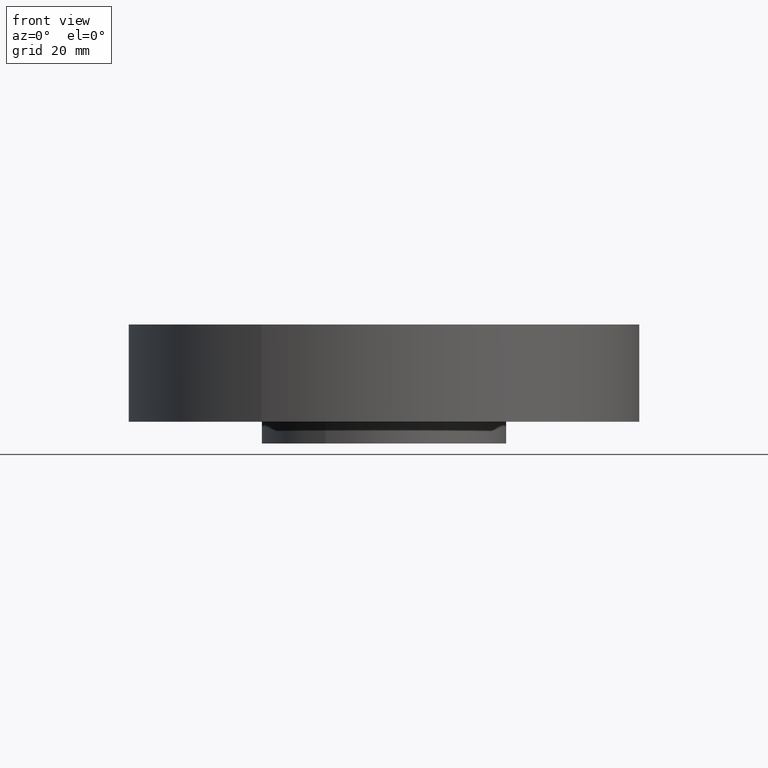
[diagram: clean part render]
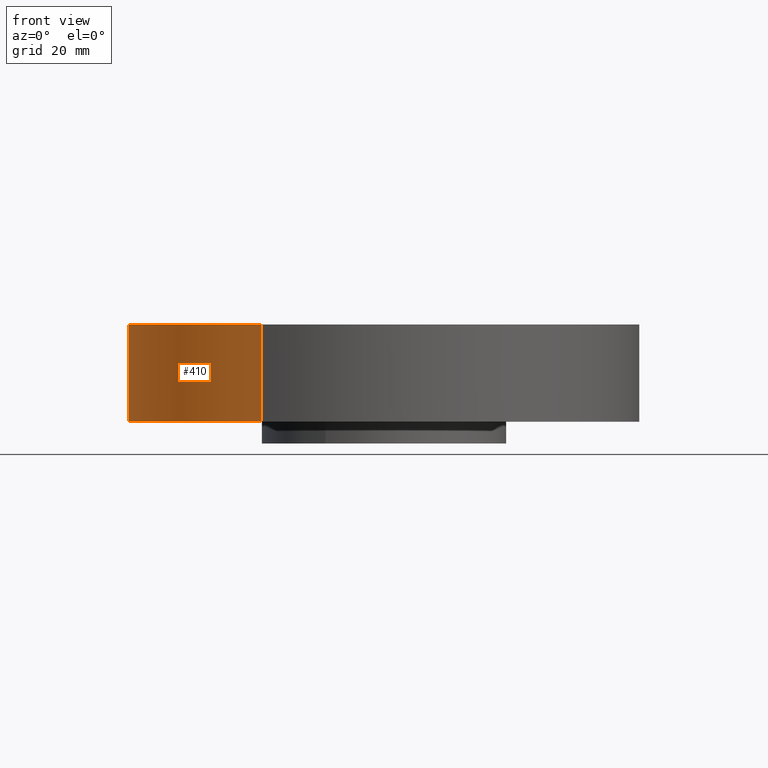
[diagram: same view with one face highlighted and labeled with its STEP entity id]
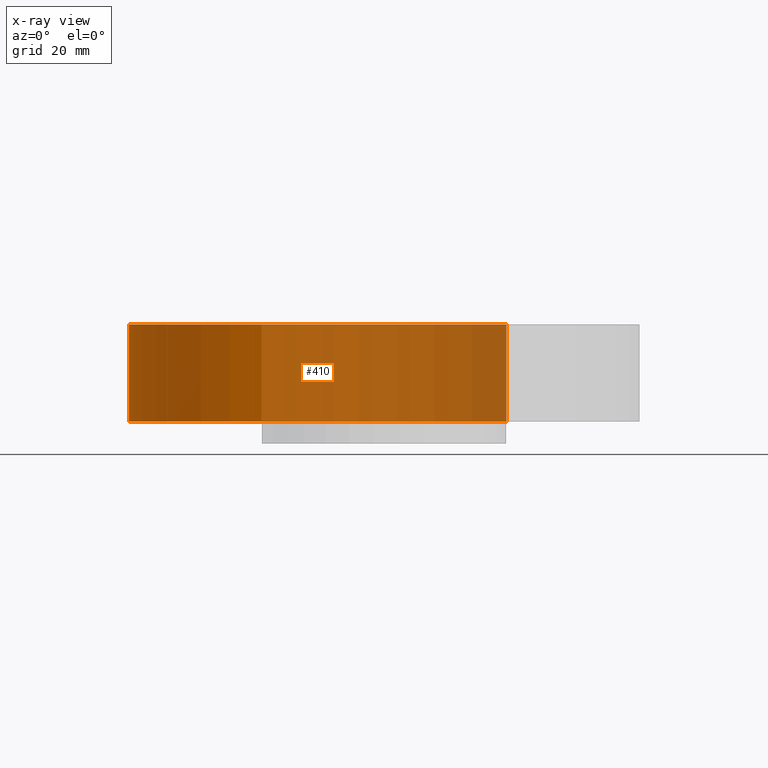
[diagram: x-ray of the same camera — body ghosted, the highlighted face saturated]
A machine part, front view. The second image highlights one B-rep face of the part: STEP entity #410.
The next image is the same camera in x-ray: the body ghosted, the highlighted face saturated — about 65% of this face is hidden behind the body in this view.
In plain terms, the highlighted cylindrical surface (partial cylindrical patch) has radius 74.676 mm, axis along (0, 0, -1).
Its self-contained STEP definition (entity closure, byte-faithful):
#274=AXIS2_PLACEMENT_3D('Circle Axis2P3D',#272,#273,$) ;
#371=AXIS2_PLACEMENT_3D('Cylinder Axis2P3D',#368,#369,#370) ;
#401=AXIS2_PLACEMENT_3D('Circle Axis2P3D',#399,#400,$) ;
#272=CARTESIAN_POINT('Axis2P3D Location',(0.,0.,0.)) ;
#276=CARTESIAN_POINT('Vertex',(-1.4095110835,-2.58009273197,2.09805925913E-016)) ;
#278=CARTESIAN_POINT('Vertex',(1.4095110835,2.58009273197,2.09805925913E-016)) ;
#368=CARTESIAN_POINT('Axis2P3D Location',(0.,0.,0.435000000002)) ;
#373=CARTESIAN_POINT('Line Origine',(1.4095110835,2.58009273197,0.560000000002)) ;
#377=CARTESIAN_POINT('Vertex',(1.4095110835,2.58009273197,1.12)) ;
#384=CARTESIAN_POINT('Vertex',(-1.4095110835,-2.58009273197,1.12)) ;
#387=CARTESIAN_POINT('Line Origine',(-1.4095110835,-2.58009273197,0.560000000002)) ;
#399=CARTESIAN_POINT('Axis2P3D Location',(0.,0.,1.12)) ;
#273=DIRECTION('Axis2P3D Direction',(0.,0.,-0.0393700787402)) ;
#369=DIRECTION('Axis2P3D Direction',(0.,0.,-0.0393700787402)) ;
#370=DIRECTION('Axis2P3D XDirection',(-0.0188750212049,-0.0345504945626,0.)) ;
#374=DIRECTION('Vector Direction',(0.,0.,-0.0393700787402)) ;
#388=DIRECTION('Vector Direction',(0.,0.,-0.0393700787402)) ;
#400=DIRECTION('Axis2P3D Direction',(0.,0.,-0.0393700787402)) ;
#375=VECTOR('Line Direction',#374,0.0393700787402) ;
#389=VECTOR('Line Direction',#388,0.0393700787402) ;
#405=ORIENTED_EDGE('',*,*,#280,.F.) ;
#406=ORIENTED_EDGE('',*,*,#391,.T.) ;
#407=ORIENTED_EDGE('',*,*,#403,.T.) ;
#408=ORIENTED_EDGE('',*,*,#379,.F.) ;
#410=ADVANCED_FACE('PartBody',(#409),#372,.T.) ;
#275=CIRCLE('generated circle',#274,2.94000000001) ;
#402=CIRCLE('generated circle',#401,2.94000000001) ;
#372=CYLINDRICAL_SURFACE('generated cylinder',#371,2.94000000001) ;
#280=EDGE_CURVE('',#277,#279,#275,.T.) ;
#379=EDGE_CURVE('',#279,#378,#376,.F.) ;
#391=EDGE_CURVE('',#277,#385,#390,.F.) ;
#403=EDGE_CURVE('',#385,#378,#402,.T.) ;
#404=EDGE_LOOP('',(#405,#406,#407,#408)) ;
#409=FACE_OUTER_BOUND('',#404,.T.) ;
#376=LINE('Line',#373,#375) ;
#390=LINE('Line',#387,#389) ;
#277=VERTEX_POINT('',#276) ;
#279=VERTEX_POINT('',#278) ;
#378=VERTEX_POINT('',#377) ;
#385=VERTEX_POINT('',#384) ;